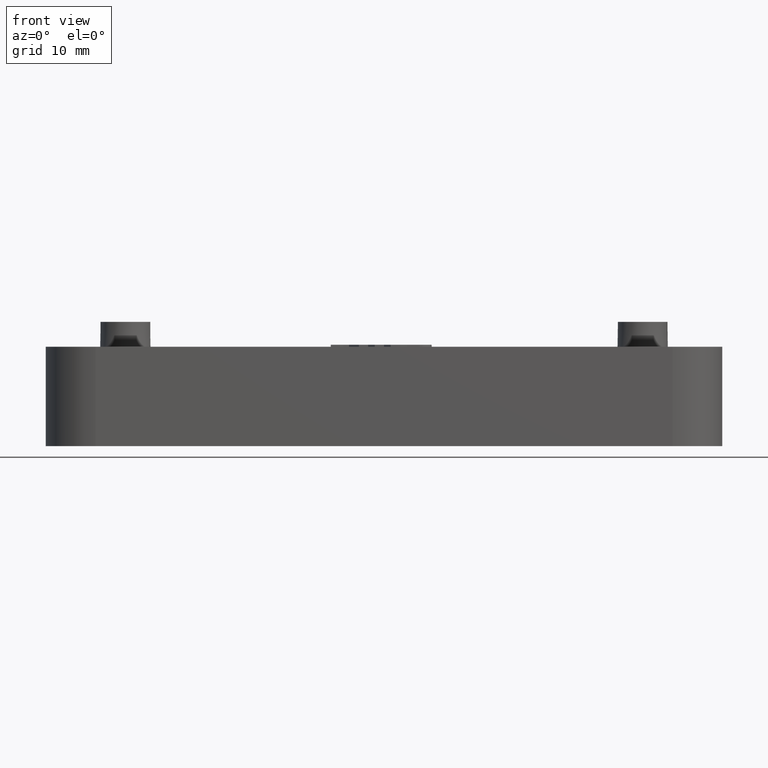
[diagram: clean part render]
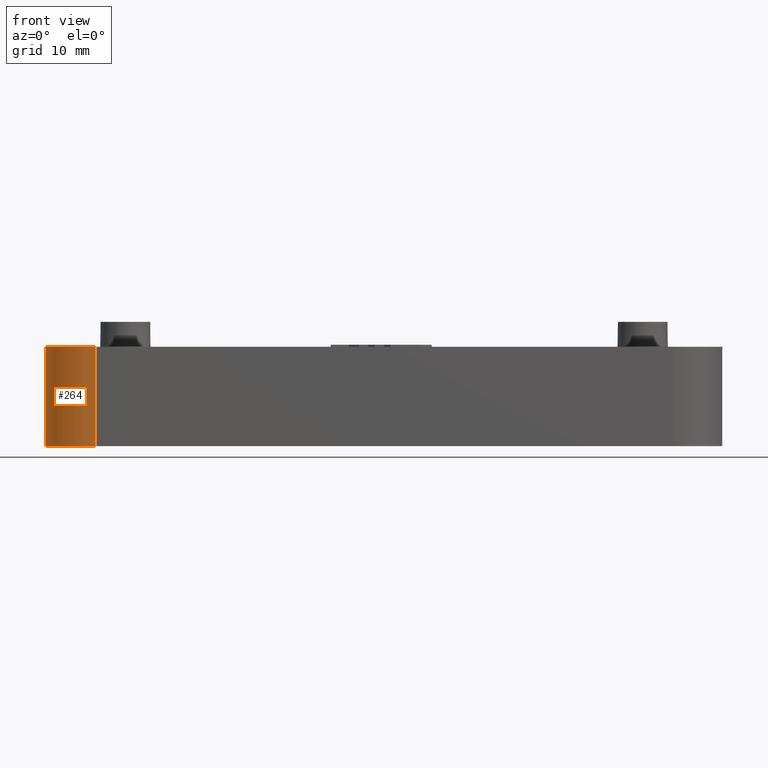
[diagram: same view with one face highlighted and labeled with its STEP entity id]
A machine part, front view. The second image highlights one B-rep face of the part: STEP entity #264.
In plain terms, the highlighted cylindrical surface (partial cylindrical patch) has radius 5 mm, axis along (-0, 0, 1).
Its self-contained STEP definition (entity closure, byte-faithful):
#264 = ADVANCED_FACE( '', ( #880 ), #881, .T. );
#880 = FACE_OUTER_BOUND( '', #1674, .T. );
#881 = CYLINDRICAL_SURFACE( '', #1675, 5.00000000000000 );
#1674 = EDGE_LOOP( '', ( #3739, #3740, #3741, #3742 ) );
#1675 = AXIS2_PLACEMENT_3D( '', #3743, #3744, #3745 );
#3739 = ORIENTED_EDGE( '', *, *, #5316, .F. );
#3740 = ORIENTED_EDGE( '', *, *, #5032, .F. );
#3741 = ORIENTED_EDGE( '', *, *, #5009, .T. );
#3742 = ORIENTED_EDGE( '', *, *, #5801, .T. );
#3743 = CARTESIAN_POINT( '', ( -29.0000000000000, -7.50000000000000, 95.1170716855138 ) );
#3744 = DIRECTION( '', ( -1.60751816480226E-016, 1.81794180051289E-016, 1.00000000000000 ) );
#3745 = DIRECTION( '', ( -1.00000000000000, 4.62592926927148E-016, -1.60751816480226E-016 ) );
#5009 = EDGE_CURVE( '', #5955, #5953, #5956, .T. );
#5032 = EDGE_CURVE( '', #5955, #5997, #6000, .T. );
#5316 = EDGE_CURVE( '', #5997, #6562, #6563, .T. );
#5801 = EDGE_CURVE( '', #5953, #6562, #7349, .T. );
#5953 = VERTEX_POINT( '', #7514 );
#5955 = VERTEX_POINT( '', #7517 );
#5956 = CIRCLE( '', #7518, 5.00000000000000 );
#5997 = VERTEX_POINT( '', #7575 );
#6000 = LINE( '', #7580, #7581 );
#6562 = VERTEX_POINT( '', #8424 );
#6563 = CIRCLE( '', #8425, 5.00000000000000 );
#7349 = LINE( '', #9690, #9691 );
#7514 = CARTESIAN_POINT( '', ( -34.0000000000000, -7.50000000000001, 10.0000000000000 ) );
#7517 = CARTESIAN_POINT( '', ( -29.0000000000000, -12.5000000000000, 10.0000000000000 ) );
#7518 = AXIS2_PLACEMENT_3D( '', #9951, #9952, #9953 );
#7575 = CARTESIAN_POINT( '', ( -29.0000000000000, -12.5000000000000, 1.46431667789534E-014 ) );
#7580 = CARTESIAN_POINT( '', ( -29.0000000000000, -12.5000000000000, 95.1170716855138 ) );
#7581 = VECTOR( '', #9984, 1000.00000000000 );
#8424 = CARTESIAN_POINT( '', ( -34.0000000000000, -7.50000000000001, 1.43370151904978E-014 ) );
#8425 = AXIS2_PLACEMENT_3D( '', #10272, #10273, #10274 );
#9690 = CARTESIAN_POINT( '', ( -34.0000000000000, -7.50000000000000, 95.1170716855138 ) );
#9691 = VECTOR( '', #10769, 1000.00000000000 );
#9951 = CARTESIAN_POINT( '', ( -29.0000000000000, -7.50000000000002, 10.0000000000000 ) );
#9952 = DIRECTION( '', ( 0.000000000000000, -6.12303176911189E-017, -1.00000000000000 ) );
#9953 = DIRECTION( '', ( 0.000000000000000, 1.00000000000000, -6.12303176911189E-017 ) );
#9984 = DIRECTION( '', ( 1.60751816480226E-016, -1.81794180051289E-016, -1.00000000000000 ) );
#10272 = CARTESIAN_POINT( '', ( -29.0000000000000, -7.50000000000002, 1.43370151904978E-014 ) );
#10273 = DIRECTION( '', ( 0.000000000000000, -6.12303176911189E-017, -1.00000000000000 ) );
#10274 = DIRECTION( '', ( 0.000000000000000, 1.00000000000000, -6.12303176911189E-017 ) );
#10769 = DIRECTION( '', ( 1.60751816480226E-016, -1.81794180051289E-016, -1.00000000000000 ) );